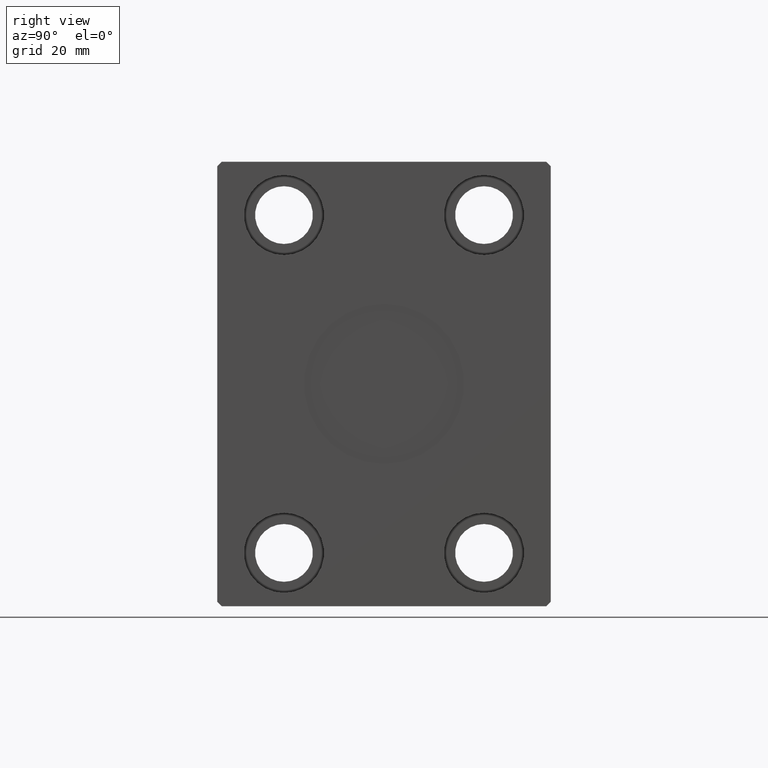
[diagram: clean part render]
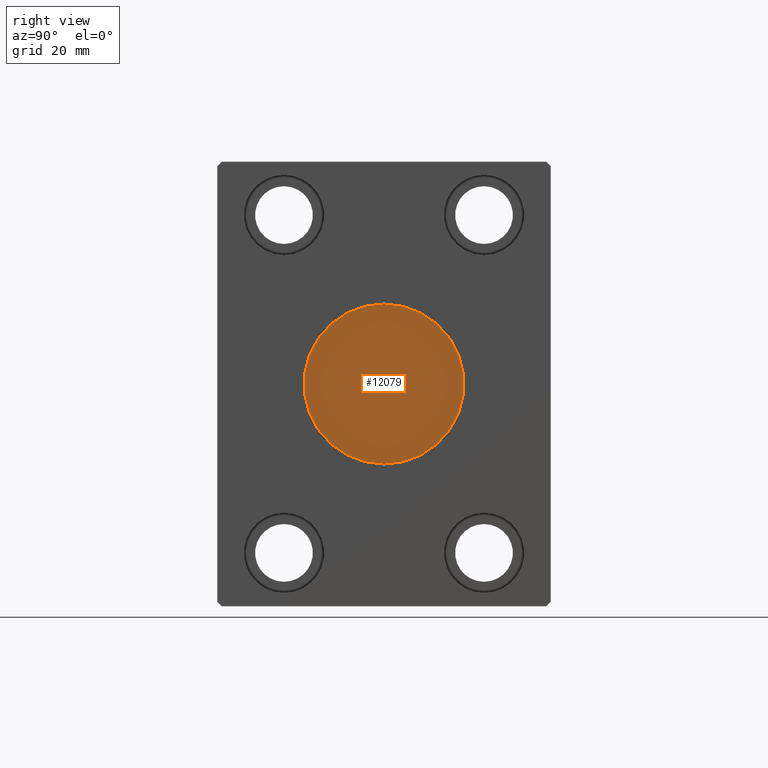
[diagram: same view with one face highlighted and labeled with its STEP entity id]
A machine part, right view. The second image highlights one B-rep face of the part: STEP entity #12079.
In plain terms, the highlighted planar face has unit normal (1, 0, 0).
Its self-contained STEP definition (entity closure, byte-faithful):
#1750 = EDGE_CURVE ( 'NONE', #4891, #34095, #9459, .T. ) ;
#4257 = CARTESIAN_POINT ( 'NONE',  ( 106.7999999999999972, 0.000000000000000000, 0.000000000000000000 ) ) ;
#4891 = VERTEX_POINT ( 'NONE', #11724 ) ;
#6001 = CARTESIAN_POINT ( 'NONE',  ( 106.7999999999999972, 2.204364238465235428E-15, 18.00000000000000000 ) ) ;
#8099 = ORIENTED_EDGE ( 'NONE', *, *, #12177, .T. ) ;
#8581 = AXIS2_PLACEMENT_3D ( 'NONE', #32161, #18436, #25499 ) ;
#9459 = CIRCLE ( 'NONE', #11625, 18.00000000000000000 ) ;
#11140 = DIRECTION ( 'NONE',  ( 0.000000000000000000, 0.000000000000000000, -1.000000000000000000 ) ) ;
#11625 = AXIS2_PLACEMENT_3D ( 'NONE', #20097, #32362, #16243 ) ;
#11724 = CARTESIAN_POINT ( 'NONE',  ( 106.7999999999999972, 0.000000000000000000, -18.00000000000000000 ) ) ;
#12079 = ADVANCED_FACE ( 'NONE', ( #24019 ), #20584, .T. ) ;
#12177 = EDGE_CURVE ( 'NONE', #34095, #4891, #29833, .T. ) ;
#13091 = EDGE_LOOP ( 'NONE', ( #15228, #8099 ) ) ;
#13345 = AXIS2_PLACEMENT_3D ( 'NONE', #4257, #30451, #11140 ) ;
#15228 = ORIENTED_EDGE ( 'NONE', *, *, #1750, .T. ) ;
#16243 = DIRECTION ( 'NONE',  ( 0.000000000000000000, 0.000000000000000000, -1.000000000000000000 ) ) ;
#18436 = DIRECTION ( 'NONE',  ( 1.000000000000000000, 0.000000000000000000, 0.000000000000000000 ) ) ;
#20097 = CARTESIAN_POINT ( 'NONE',  ( 106.7999999999999972, 0.000000000000000000, 0.000000000000000000 ) ) ;
#20584 = PLANE ( 'NONE',  #13345 ) ;
#24019 = FACE_OUTER_BOUND ( 'NONE', #13091, .T. ) ;
#25499 = DIRECTION ( 'NONE',  ( 0.000000000000000000, 0.000000000000000000, -1.000000000000000000 ) ) ;
#29833 = CIRCLE ( 'NONE', #8581, 18.00000000000000000 ) ;
#30451 = DIRECTION ( 'NONE',  ( 1.000000000000000000, 0.000000000000000000, 0.000000000000000000 ) ) ;
#32161 = CARTESIAN_POINT ( 'NONE',  ( 106.7999999999999972, 0.000000000000000000, 0.000000000000000000 ) ) ;
#32362 = DIRECTION ( 'NONE',  ( 1.000000000000000000, 0.000000000000000000, 0.000000000000000000 ) ) ;
#34095 = VERTEX_POINT ( 'NONE', #6001 ) ;